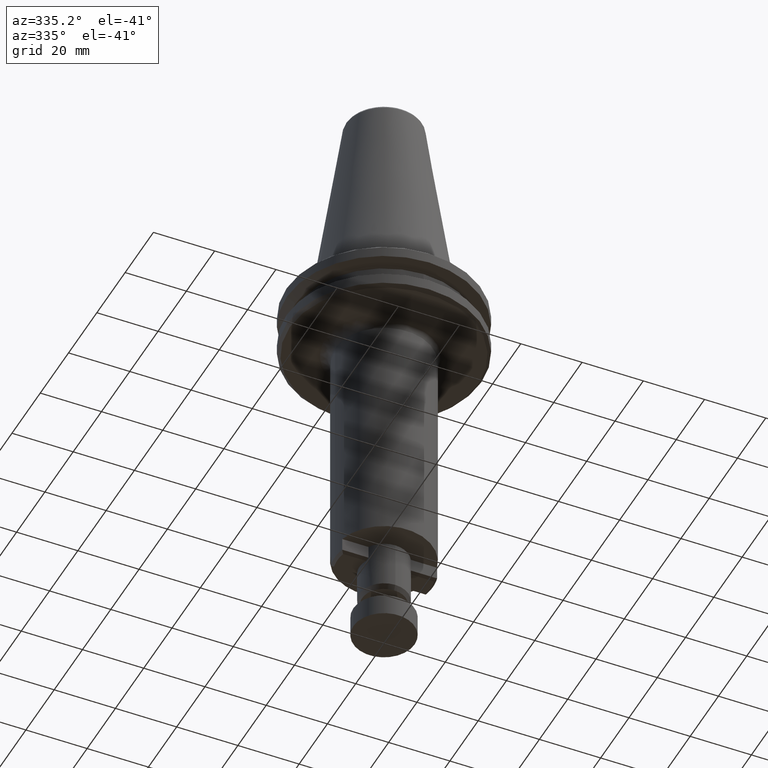
[diagram: clean part render]
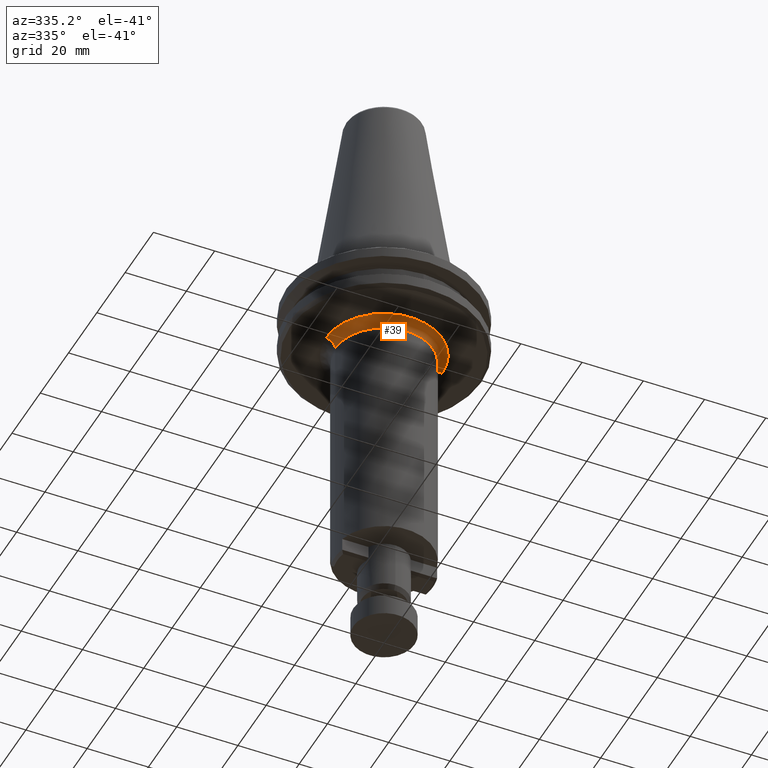
[diagram: same view with one face highlighted and labeled with its STEP entity id]
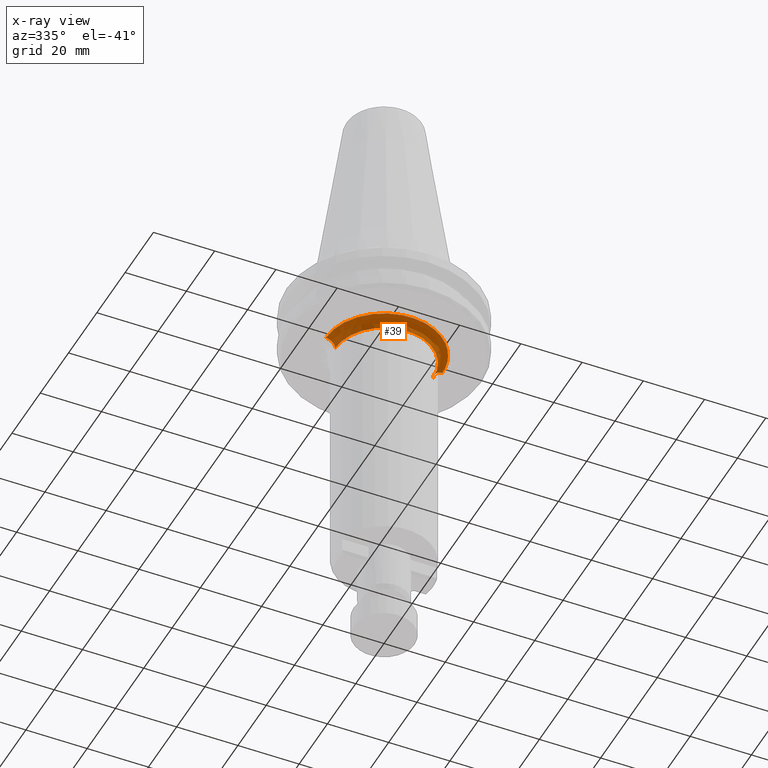
[diagram: x-ray of the same camera — body ghosted, the highlighted face saturated]
A machine part, auxiliary view. The second image highlights one B-rep face of the part: STEP entity #39.
The next image is the same camera in x-ray: the body ghosted, the highlighted face saturated — about 0% of this face is hidden behind the body in this view.
In plain terms, the highlighted face is a freeform B-spline surface patch.
Its self-contained STEP definition (entity closure, byte-faithful):
#36 = CARTESIAN_POINT ( 'NONE',  ( -19.00000000545200900, 0.0000000000000000000, -19.09999999992663800 ) ) ;
#38 = CARTESIAN_POINT ( 'NONE',  ( 17.95705244064510400, -6.218791703970409500, -19.10000000000000100 ) ) ;
#39 = ADVANCED_FACE ( 'NONE', ( #646 ), #1165, .F. ) ;
#62 = CARTESIAN_POINT ( 'NONE',  ( -12.52453243535676600, -14.28763286654409700, -19.10000000000000900 ) ) ;
#69 = CARTESIAN_POINT ( 'NONE',  ( -12.55583894094087700, -14.26012803612243100, -19.10000000000000500 ) ) ;
#76 = CARTESIAN_POINT ( 'NONE',  ( -8.962333903411964900, -16.75342047558147500, -19.10000000000000500 ) ) ;
#79 = CARTESIAN_POINT ( 'NONE',  ( -15.24513918323105000, -11.33957646189557300, -19.10000000000000100 ) ) ;
#81 = CARTESIAN_POINT ( 'NONE',  ( -15.35706673221759100, -11.18796214395362300, -19.10000000000000100 ) ) ;
#84 = AXIS2_PLACEMENT_3D ( 'NONE', #392, #317, #1189 ) ;
#111 = CARTESIAN_POINT ( 'NONE',  ( -15.21249292925832800, -11.38334098104500900, -19.10000000000000500 ) ) ;
#118 = CARTESIAN_POINT ( 'NONE',  ( -14.16203973266070900, -12.69728857693814700, -19.10000000000000100 ) ) ;
#174 = CARTESIAN_POINT ( 'NONE',  ( -16.01498750400000400, 0.0000000000000000000, -22.39950024999999900 ) ) ;
#177 = CARTESIAN_POINT ( 'NONE',  ( 15.11209687522461000, -11.51639939022069600, -19.10000000000000500 ) ) ;
#218 = CARTESIAN_POINT ( 'NONE',  ( -8.981086982203191100, -16.74337238950391800, -19.10000000000000100 ) ) ;
#236 = CARTESIAN_POINT ( 'NONE',  ( -9.219426998697034700, -16.61375730837693300, -19.10000000000000100 ) ) ;
#239 = CARTESIAN_POINT ( 'NONE',  ( -18.83534767184776700, -2.495958203586289900, -19.10000000000000500 ) ) ;
#245 = CARTESIAN_POINT ( 'NONE',  ( -17.13005107734147700, -8.219684884473665000, -19.10000000000000500 ) ) ;
#260 = CARTESIAN_POINT ( 'NONE',  ( -15.51145590361593200, -10.97430836230128800, -19.10000000000000500 ) ) ;
#263 = CARTESIAN_POINT ( 'NONE',  ( -15.81220156055941200, -10.54215301974929300, -19.09999999999999800 ) ) ;
#266 = CIRCLE ( 'NONE', #84, 15.99999999987771900 ) ;
#274 = CARTESIAN_POINT ( 'NONE',  ( -15.99999999990828800, -1.230620203816620500E-009, -22.09999999974090900 ) ) ;
#279 = CARTESIAN_POINT ( 'NONE',  ( -18.29761689764103800, -5.118919848471761300, -19.10000000000000100 ) ) ;
#282 = CARTESIAN_POINT ( 'NONE',  ( -18.35330572239783100, -4.917448810888722700, -19.10000000000000500 ) ) ;
#287 = CARTESIAN_POINT ( 'NONE',  ( -17.18086604673874300, -8.113305769463718100, -19.10000000000000100 ) ) ;
#314 = ORIENTED_EDGE ( 'NONE', *, *, #775, .F. ) ;
#317 = DIRECTION ( 'NONE',  ( 0.0000000000000000000, 1.084202172493490300E-016, -1.000000000000000000 ) ) ;
#357 = CARTESIAN_POINT ( 'NONE',  ( 19.29950024999999800, 0.0000000000000000000, -19.11498750400000500 ) ) ;
#380 = CARTESIAN_POINT ( 'NONE',  ( -17.09339984187957700, -8.295535603817265600, -19.10000000000000500 ) ) ;
#384 = CARTESIAN_POINT ( 'NONE',  ( -16.00000000030355100, 0.0000000000000000000, -20.34264068385204300 ) ) ;
#388 = CARTESIAN_POINT ( 'NONE',  ( -8.264138598252655400, -17.12583885975123400, -19.10000000000000500 ) ) ;
#392 = CARTESIAN_POINT ( 'NONE',  ( 0.0000000000000000000, 0.0000000000000000000, -22.10000000000000900 ) ) ;
#407 = CARTESIAN_POINT ( 'NONE',  ( -9.080622607792978600, -16.68969277510573300, -19.10000000000000100 ) ) ;
#410 = CARTESIAN_POINT ( 'NONE',  ( -16.01498750400000800, -32.02997500800001500, -22.39950025000000300 ) ) ;
#422 = CARTESIAN_POINT ( 'NONE',  ( -5.324572743321044600, -18.24051958477763000, -19.09999999999999800 ) ) ;
#442 = CARTESIAN_POINT ( 'NONE',  ( -19.00000000545200900, 0.0000000000000000000, -19.09999999992663800 ) ) ;
#445 = CARTESIAN_POINT ( 'NONE',  ( -18.83383924483710500, -2.507328258564880800, -19.10000000000000100 ) ) ;
#447 = CARTESIAN_POINT ( 'NONE',  ( -18.76847155256034600, -2.995584215585153300, -19.09999999999999800 ) ) ;
#451 = CARTESIAN_POINT ( 'NONE',  ( -18.64694911184324900, -3.700413970303941800, -19.10000000000000100 ) ) ;
#509 = CARTESIAN_POINT ( 'NONE',  ( 15.02349800377708000, -11.63214582304317100, -19.10000000000000500 ) ) ;
#516 = CARTESIAN_POINT ( 'NONE',  ( 19.00000000545200500, 0.0000000000000000000, -19.09999999992663800 ) ) ;
#533 = EDGE_CURVE ( 'NONE', #765, #2144, #266, .T. ) ;
#576 = CARTESIAN_POINT ( 'NONE',  ( -15.99999999990828800, -1.230620203816620500E-009, -22.09999999974090900 ) ) ;
#591 = CARTESIAN_POINT ( 'NONE',  ( -16.38156213103350800, -9.658451217656047300, -19.09999999999999800 ) ) ;
#605 = CARTESIAN_POINT ( 'NONE',  ( -18.26904945742166200, -5.219508784851025300, -19.09999999999999400 ) ) ;
#612 = CARTESIAN_POINT ( 'NONE',  ( 17.24264069015787400, 0.0000000000000000000, -19.09999999689970500 ) ) ;
#632 = CARTESIAN_POINT ( 'NONE',  ( 19.00000000545200500, 0.0000000000000000000, -19.09999999992663800 ) ) ;
#645 = CARTESIAN_POINT ( 'NONE',  ( -19.29950024999999800, 0.0000000000000000000, -19.11498750400000500 ) ) ;
#646 = FACE_OUTER_BOUND ( 'NONE', #1775, .T. ) ;
#765 = VERTEX_POINT ( 'NONE', #2111 ) ;
#775 = EDGE_CURVE ( 'NONE', #2237, #1362, #1873, .T. ) ;
#820 = CARTESIAN_POINT ( 'NONE',  ( -1.582605885478423500, -18.99990892630771800, -19.10000000000000500 ) ) ;
#830 = CARTESIAN_POINT ( 'NONE',  ( 0.7913029427397346700, -19.00004553482212400, -19.10000000000000100 ) ) ;
#835 = CARTESIAN_POINT ( 'NONE',  ( -4.724857334212559900, -18.40320797551033400, -19.10000000000000900 ) ) ;
#846 = CARTESIAN_POINT ( 'NONE',  ( 9.579537336600218100, -16.42429215525838900, -19.10000000000000900 ) ) ;
#854 = CARTESIAN_POINT ( 'NONE',  ( 18.82787069369280500, -2.551753388856962300, -19.10000000000000900 ) ) ;
#859 = CARTESIAN_POINT ( 'NONE',  ( 14.47729407120939400, -12.31291229760819700, -19.10000000000000100 ) ) ;
#860 = CARTESIAN_POINT ( 'NONE',  ( -12.51018369949012900, -14.30020171110121700, -19.10000000000000500 ) ) ;
#881 = CARTESIAN_POINT ( 'NONE',  ( 15.56170754946818000, -10.91778301388513100, -19.10000000000000900 ) ) ;
#906 = CARTESIAN_POINT ( 'NONE',  ( 11.51801248307951300, -15.11861122753505700, -19.10000000000000100 ) ) ;
#911 = CARTESIAN_POINT ( 'NONE',  ( 10.50230476336805200, -15.86277718720209500, -19.10000000000000100 ) ) ;
#929 = CARTESIAN_POINT ( 'NONE',  ( -18.45889914918349500, -4.513334076424572800, -19.10000000000000900 ) ) ;
#937 = CARTESIAN_POINT ( 'NONE',  ( -17.10808538279960100, -8.265204800513211900, -19.10000000000000100 ) ) ;
#948 = CARTESIAN_POINT ( 'NONE',  ( 4.580941071897652400, -18.43955888703034800, -19.10000000000000900 ) ) ;
#952 = CARTESIAN_POINT ( 'NONE',  ( 16.06781967307481200, -10.17185061201232300, -19.09999999999999800 ) ) ;
#958 = CARTESIAN_POINT ( 'NONE',  ( -17.28074271406496000, -7.899883629106558800, -19.10000000000000100 ) ) ;
#962 = CARTESIAN_POINT ( 'NONE',  ( -18.24471286189909900, -5.303838732464154900, -19.10000000000000100 ) ) ;
#974 = ORIENTED_EDGE ( 'NONE', *, *, #1645, .T. ) ;
#977 = CARTESIAN_POINT ( 'NONE',  ( 18.99999999858327700, -0.8448279161415245300, -19.10000000000000900 ) ) ;
#979 = CARTESIAN_POINT ( 'NONE',  ( -4.862689239477622200, -18.36727125998733000, -19.10000000000000900 ) ) ;
#982 = CARTESIAN_POINT ( 'NONE',  ( -4.769904803613674600, -18.39157994833023900, -19.10000000000001200 ) ) ;
#1007 = EDGE_CURVE ( 'NONE', #2237, #2144, #1515, .T. ) ;
#1010 = CARTESIAN_POINT ( 'NONE',  ( 8.856383771649428000, -16.80966900684414600, -19.10000000000000500 ) ) ;
#1027 = CARTESIAN_POINT ( 'NONE',  ( 18.94395279865391000, -1.685535880683595200, -19.10000000000000500 ) ) ;
#1054 = CARTESIAN_POINT ( 'NONE',  ( 15.81033873199999800, -31.62067746400000000, -20.35983870400000500 ) ) ;
#1059 = CARTESIAN_POINT ( 'NONE',  ( -9.495110539605381200, -16.45911929290287600, -19.10000000000000100 ) ) ;
#1073 = CARTESIAN_POINT ( 'NONE',  ( -12.92722799897615200, -13.92612539565154300, -19.10000000000000500 ) ) ;
#1083 = CARTESIAN_POINT ( 'NONE',  ( -15.81033873199999800, 0.0000000000000000000, -20.35983870400000500 ) ) ;
#1085 = CARTESIAN_POINT ( 'NONE',  ( 12.47746222979179400, -14.32875866463033500, -19.10000000000000500 ) ) ;
#1109 = CARTESIAN_POINT ( 'NONE',  ( -19.00000000545200900, 0.0000000000000000000, -19.09999999992663800 ) ) ;
#1114 = CARTESIAN_POINT ( 'NONE',  ( -5.001668602098401800, -18.33030420487665800, -19.09999999999999100 ) ) ;
#1117 = CARTESIAN_POINT ( 'NONE',  ( -16.81450420273213100, -8.867750615308786200, -19.09999999999999800 ) ) ;
#1128 = CARTESIAN_POINT ( 'NONE',  ( -9.020928735880531200, -16.72194007348773700, -19.10000000000000100 ) ) ;
#1134 = CARTESIAN_POINT ( 'NONE',  ( -17.83091111690815100, -6.600761297519528400, -19.10000000000001200 ) ) ;
#1135 = CARTESIAN_POINT ( 'NONE',  ( -18.08918837440250700, -5.837160548676654200, -19.09999999999999800 ) ) ;
#1142 = CARTESIAN_POINT ( 'NONE',  ( -17.25983870400000700, -34.51967740899997500, -18.91033873200000300 ) ) ;
#1165 =( BOUNDED_SURFACE ( )  B_SPLINE_SURFACE ( 3, 3, ( 
 ( #357, #1864, #1705, #645 ),
 ( #1907, #2227, #1142, #1224 ),
 ( #1968, #1054, #1921, #1083 ),
 ( #1216, #1627, #410, #174 ) ),
 .UNSPECIFIED., .F., .F., .T. ) 
 B_SPLINE_SURFACE_WITH_KNOTS ( ( 4, 4 ),
 ( 4, 4 ),
 ( 0.0000000000000000000, 1.000000000000000000 ),
 ( 0.0000000000000000000, 1.000000000000000000 ),
 .UNSPECIFIED. ) 
 GEOMETRIC_REPRESENTATION_ITEM ( )  RATIONAL_B_SPLINE_SURFACE ( (
 ( 1.000000000000000000, 0.3333333333333330400, 0.3333333333333330400, 1.000000000000000000),
 ( 0.7553208711179720800, 0.2517736237059909900, 0.2517736237059909900, 0.7553208711179720800),
 ( 0.7553208711179720800, 0.2517736237059909900, 0.2517736237059909900, 0.7553208711179720800),
 ( 1.000000000000000000, 0.3333333333333330400, 0.3333333333333330400, 1.000000000000000000) ) ) 
 REPRESENTATION_ITEM ( '' )  SURFACE ( )  );
#1166 = CARTESIAN_POINT ( 'NONE',  ( 12.99518121870957200, -13.87698297224406100, -19.10000000000000500 ) ) ;
#1172 = CARTESIAN_POINT ( 'NONE',  ( 18.20666516449709600, -5.433154239186166900, -19.10000000000000100 ) ) ;
#1180 = CARTESIAN_POINT ( 'NONE',  ( -18.24835148885313900, -5.291298694145531600, -19.10000000000000100 ) ) ;
#1187 = CARTESIAN_POINT ( 'NONE',  ( -18.25665133421885100, -5.262586918496648300, -19.10000000000000100 ) ) ;
#1189 = DIRECTION ( 'NONE',  ( 0.0000000000000000000, 1.000000000000000000, 0.0000000000000000000 ) ) ;
#1190 = CARTESIAN_POINT ( 'NONE',  ( -17.47348296284392400, -7.470383707043068500, -19.10000000000000500 ) ) ;
#1216 = CARTESIAN_POINT ( 'NONE',  ( 16.01498750400000400, 0.0000000000000000000, -22.39950024999999900 ) ) ;
#1219 = CARTESIAN_POINT ( 'NONE',  ( -13.35006861207772600, -13.52684771095808200, -19.10000000000000500 ) ) ;
#1221 = CARTESIAN_POINT ( 'NONE',  ( -12.71159392922284300, -14.12188876741913300, -19.09999999999999800 ) ) ;
#1224 = CARTESIAN_POINT ( 'NONE',  ( -17.25983870400000300, 0.0000000000000000000, -18.91033873200000700 ) ) ;
#1247 = CARTESIAN_POINT ( 'NONE',  ( 12.42483367054750700, -14.37441932913137400, -19.10000000000000900 ) ) ;
#1250 = CARTESIAN_POINT ( 'NONE',  ( 19.00000000545200500, 0.0000000000000000000, -19.09999999992663800 ) ) ;
#1276 = CARTESIAN_POINT ( 'NONE',  ( 17.02045797280703400, -8.444308981165320900, -19.10000000000000500 ) ) ;
#1277 = CARTESIAN_POINT ( 'NONE',  ( 15.14984418690799500, -11.46658389672990300, -19.10000000000000900 ) ) ;
#1295 = CARTESIAN_POINT ( 'NONE',  ( 4.630440515401453200, -18.42718687292486700, -19.10000000000000100 ) ) ;
#1316 = CARTESIAN_POINT ( 'NONE',  ( -5.964856872862749300, -18.04683771188295400, -19.10000000000000100 ) ) ;
#1358 = CARTESIAN_POINT ( 'NONE',  ( -17.24264069024678000, 0.0000000000000000000, -19.09999999689970500 ) ) ;
#1361 = CARTESIAN_POINT ( 'NONE',  ( 8.921227692839197600, -16.77534381009656500, -19.10000000000000500 ) ) ;
#1362 = VERTEX_POINT ( 'NONE', #632 ) ;
#1365 = CARTESIAN_POINT ( 'NONE',  ( -3.143026832159808500, -18.80503704820469900, -19.10000000000000500 ) ) ;
#1368 = CARTESIAN_POINT ( 'NONE',  ( -12.60272345354555200, -14.21880158565816100, -19.10000000000000100 ) ) ;
#1375 = CARTESIAN_POINT ( 'NONE',  ( -17.08690629291481900, -8.308908073560624900, -19.10000000000000100 ) ) ;
#1385 = CARTESIAN_POINT ( 'NONE',  ( 16.59449771326922700, -9.262034026308995700, -19.09999999999999400 ) ) ;
#1390 = CARTESIAN_POINT ( 'NONE',  ( 12.01065277338917200, -14.72426195680119500, -19.09999999999999800 ) ) ;
#1424 = CARTESIAN_POINT ( 'NONE',  ( -7.223328520331968200, -17.60302343530720400, -19.10000000000000100 ) ) ;
#1437 = CARTESIAN_POINT ( 'NONE',  ( -11.94809418835500000, -14.79080548518274800, -19.10000000000000500 ) ) ;
#1503 = CARTESIAN_POINT ( 'NONE',  ( -18.84392716162608000, -2.430535178837561100, -19.10000000000000100 ) ) ;
#1506 = CARTESIAN_POINT ( 'NONE',  ( -18.83879588783316400, -2.469789999360993100, -19.10000000000000100 ) ) ;
#1508 = CARTESIAN_POINT ( 'NONE',  ( -18.87783461910236600, -2.155628240084887200, -19.09999999999999400 ) ) ;
#1509 = CARTESIAN_POINT ( 'NONE',  ( -18.91768067154012200, -1.788757134844835500, -19.10000000000000900 ) ) ;
#1511 = CARTESIAN_POINT ( 'NONE',  ( -18.97898229345321800, -1.053888569268229600, -19.10000000000000500 ) ) ;
#1513 = CARTESIAN_POINT ( 'NONE',  ( -18.85561278251322300, -2.338922998317856100, -19.10000000000000500 ) ) ;
#1515 =( BOUNDED_CURVE ( )  B_SPLINE_CURVE ( 3, ( #1109, #1358, #384, #274 ),
 .UNSPECIFIED., .F., .T. ) 
 B_SPLINE_CURVE_WITH_KNOTS ( ( 4, 4 ),
 ( 0.06314145558992548300, 0.9368585432134299800 ),
 .UNSPECIFIED. ) 
 CURVE ( )  GEOMETRIC_REPRESENTATION_ITEM ( )  RATIONAL_B_SPLINE_CURVE ( ( 0.9565783030703316500, 0.7697947703503473800, 0.7697947700945281200, 0.9565783023028744400 ) ) 
 REPRESENTATION_ITEM ( '' )  );
#1516 = CARTESIAN_POINT ( 'NONE',  ( 7.740764251717635600, -17.35939238194151100, -19.09999999999999800 ) ) ;
#1519 = CARTESIAN_POINT ( 'NONE',  ( 4.003918238359123200, -18.57527524692739000, -19.10000000000000100 ) ) ;
#1535 = CARTESIAN_POINT ( 'NONE',  ( 4.484889834231926100, -18.46316197970902800, -19.10000000000000100 ) ) ;
#1553 = CARTESIAN_POINT ( 'NONE',  ( 4.340743744745185300, -18.49799543845204000, -19.09999999999999800 ) ) ;
#1565 = CARTESIAN_POINT ( 'NONE',  ( 1.969395534366131800, -18.92700276387898500, -19.10000000000000100 ) ) ;
#1598 = CARTESIAN_POINT ( 'NONE',  ( 15.18869663791194400, -11.41506927998092800, -19.10000000000000100 ) ) ;
#1615 = CARTESIAN_POINT ( 'NONE',  ( 17.06209609930837700, -8.359734360222555300, -19.10000000000000500 ) ) ;
#1627 = CARTESIAN_POINT ( 'NONE',  ( 16.01498750400000800, -32.02997500800001500, -22.39950025000000300 ) ) ;
#1628 = CARTESIAN_POINT ( 'NONE',  ( -14.80022622638297500, -11.93308857983589500, -19.10000000000000100 ) ) ;
#1645 = EDGE_CURVE ( 'NONE', #765, #1362, #2124, .T. ) ;
#1647 = CARTESIAN_POINT ( 'NONE',  ( 13.71006028409903100, -13.18403527070881200, -19.10000000000000100 ) ) ;
#1654 = CARTESIAN_POINT ( 'NONE',  ( 6.511466463609399300, -17.87858652471249600, -19.09999999999999800 ) ) ;
#1660 = CARTESIAN_POINT ( 'NONE',  ( 12.45902613613505800, -14.34479361217476500, -19.10000000000000900 ) ) ;
#1665 = CARTESIAN_POINT ( 'NONE',  ( 17.31470804796127900, -7.841697549157395000, -19.10000000000000100 ) ) ;
#1685 = CARTESIAN_POINT ( 'NONE',  ( 8.344581057058116300, -17.07148567630286000, -19.10000000000000500 ) ) ;
#1690 = CARTESIAN_POINT ( 'NONE',  ( 12.37347705444498800, -14.41875850148190700, -19.10000000000000100 ) ) ;
#1705 = CARTESIAN_POINT ( 'NONE',  ( -19.29950025000000100, -38.59900050000000200, -19.11498750400000500 ) ) ;
#1718 = CARTESIAN_POINT ( 'NONE',  ( -18.99999999858609500, -0.4220703328942668200, -19.10000000000000500 ) ) ;
#1737 = CARTESIAN_POINT ( 'NONE',  ( -15.22260545125431400, -11.36980987241451900, -19.10000000000000500 ) ) ;
#1750 = ORIENTED_EDGE ( 'NONE', *, *, #1007, .T. ) ;
#1763 = CARTESIAN_POINT ( 'NONE',  ( 5.420644055355637600, -18.22654847250532800, -19.10000000000000900 ) ) ;
#1775 = EDGE_LOOP ( 'NONE', ( #314, #1750, #2008, #974 ) ) ;
#1784 = CARTESIAN_POINT ( 'NONE',  ( -15.27886806078676000, -11.29418306237387500, -19.10000000000000500 ) ) ;
#1805 = CARTESIAN_POINT ( 'NONE',  ( 15.17495936509187400, -11.43332692786402800, -19.10000000000000100 ) ) ;
#1829 = CARTESIAN_POINT ( 'NONE',  ( 3.328328701918906100, -18.71384181617802500, -19.10000000000000100 ) ) ;
#1849 = CARTESIAN_POINT ( 'NONE',  ( 17.04546932464712600, -8.393581870258966400, -19.10000000000000500 ) ) ;
#1855 = CARTESIAN_POINT ( 'NONE',  ( 16.96159982290918600, -8.562363160908878600, -19.09999999999999800 ) ) ;
#1862 = CARTESIAN_POINT ( 'NONE',  ( 16.84189020736309000, -8.797235204244417500, -19.10000000000000100 ) ) ;
#1864 = CARTESIAN_POINT ( 'NONE',  ( 19.29950025000000100, -38.59900050000000200, -19.11498750400000500 ) ) ;
#1865 = CARTESIAN_POINT ( 'NONE',  ( 17.07127492275139600, -8.340972231877882900, -19.10000000000000100 ) ) ;
#1867 = CARTESIAN_POINT ( 'NONE',  ( 8.643781437549959500, -16.92045491492023100, -19.10000000000000100 ) ) ;
#1873 = B_SPLINE_CURVE_WITH_KNOTS ( 'NONE', 3,
 ( #442, #1718, #1511, #1509, #1508, #1513, #1503, #1506, #239, #445, #447, #451, #929, #282, #279, #605, #1187, #1180, #962, #1135, #1134, #1190, #958, #287, #245, #937, #380, #1375, #1117, #591, #263, #260, #81, #1784, #79, #1737, #111, #1628, #118, #1219, #1073, #1221, #1368, #69, #62, #860, #1437, #1888, #1980, #1059, #236, #407, #1128, #218, #76, #388, #1424, #1316, #422, #1114, #979, #982, #835, #1365, #820, #830, #1565, #1829, #1519, #1553, #1535, #948, #1295, #1763, #1654, #1516, #1685, #1867, #1876, #1010, #2065, #1361, #846, #911, #906, #1390, #1908, #1690, #1247, #1660, #1085, #1166, #1647, #859, #2179, #509, #177, #1277, #1805, #1598, #881, #952, #1385, #1862, #1855, #1276, #1849, #1615, #1865, #1665, #2107, #38, #2287, #2280, #1172, #2094, #2068, #2023, #2228, #2004, #2267, #2209, #2187, #2167, #2178, #854, #2174, #1027, #977, #516 ),
 .UNSPECIFIED., .F., .F.,
 ( 4, 1, 1, 1, 1, 1, 2, 2, 1, 1, 1, 1, 1, 2, 2, 1, 1, 1, 1, 1, 2, 2, 1, 1, 1, 1, 1, 2, 2, 1, 1, 1, 1, 1, 2, 2, 1, 1, 1, 1, 1, 2, 2, 1, 1, 1, 1, 2, 2, 2, 1, 1, 1, 1, 2, 2, 1, 1, 1, 1, 1, 2, 2, 1, 1, 1, 1, 1, 2, 2, 1, 1, 1, 1, 1, 2, 2, 1, 1, 1, 1, 1, 2, 2, 1, 1, 1, 1, 1, 2, 2, 1, 1, 1, 1, 1, 2, 2, 4 ),
 ( 0.0000000000000000000, 0.03124999999999814000, 0.04687499999999720400, 0.05468749999999673200, 0.05859374999999648200, 0.06054687499999632200, 0.06152343749999625300, 0.06249999999999619100, 0.09374999999999367200, 0.1093749999999923900, 0.1171874999999917600, 0.1210937499999914700, 0.1230468749999913400, 0.1240234374999912800, 0.1249999999999912300, 0.1562499999999892000, 0.1718749999999882000, 0.1796874999999877000, 0.1835937499999874000, 0.1855468749999873200, 0.1865234374999872600, 0.1874999999999872000, 0.2187499999999862300, 0.2343749999999858400, 0.2421874999999856200, 0.2460937499999855100, 0.2480468749999854800, 0.2490234374999854600, 0.2499999999999854600, 0.2812499999999846200, 0.2968749999999842300, 0.3046874999999840100, 0.3085937499999839000, 0.3105468749999838500, 0.3115234374999838500, 0.3124999999999838500, 0.3437499999999830100, 0.3593749999999826800, 0.3671874999999824600, 0.3710937499999824000, 0.3730468749999824000, 0.3740234374999824000, 0.3749999999999824000, 0.4062499999999824000, 0.4218749999999824600, 0.4296874999999824600, 0.4335937499999825100, 0.4355468749999825700, 0.4374999999999826300, 0.4999999999999849000, 0.5312499999999860100, 0.5468749999999866800, 0.5546874999999870100, 0.5585937499999872300, 0.5605468749999873400, 0.5624999999999873400, 0.5937499999999889000, 0.6093749999999895600, 0.6171874999999900100, 0.6210937499999901200, 0.6230468749999901200, 0.6240234374999902300, 0.6249999999999902300, 0.6562499999999917800, 0.6718749999999926700, 0.6796874999999931200, 0.6835937499999933400, 0.6855468749999934500, 0.6865234374999934500, 0.6874999999999934500, 0.7187499999999960000, 0.7343749999999972200, 0.7421874999999978900, 0.7460937499999982200, 0.7480468749999983300, 0.7490234374999984500, 0.7499999999999984500, 0.7812499999999986700, 0.7968749999999988900, 0.8046874999999990000, 0.8085937499999991100, 0.8105468749999992200, 0.8115234374999991100, 0.8124999999999990000, 0.8437499999999993300, 0.8593749999999994400, 0.8671874999999994400, 0.8710937499999995600, 0.8730468749999996700, 0.8740234374999996700, 0.8749999999999995600, 0.9062499999999997800, 0.9218750000000000000, 0.9296875000000001100, 0.9335937500000002200, 0.9355468750000002200, 0.9365234375000002200, 0.9375000000000002200, 1.000000000000000000 ),
 .UNSPECIFIED. ) ;
#1876 = CARTESIAN_POINT ( 'NONE',  ( 8.792704622251283900, -16.84317018208808000, -19.09999999999999800 ) ) ;
#1888 = CARTESIAN_POINT ( 'NONE',  ( -11.09530503986049900, -15.45381290359786600, -19.10000000000000100 ) ) ;
#1907 = CARTESIAN_POINT ( 'NONE',  ( 17.25983870400000300, 0.0000000000000000000, -18.91033873200000700 ) ) ;
#1908 = CARTESIAN_POINT ( 'NONE',  ( 12.25316952615746200, -14.52152074870918200, -19.10000000000000500 ) ) ;
#1921 = CARTESIAN_POINT ( 'NONE',  ( -15.81033873199999800, -31.62067746400000000, -20.35983870400000500 ) ) ;
#1957 = CARTESIAN_POINT ( 'NONE',  ( 15.99999999993886000, 0.0000000000000000000, -22.09999999982727900 ) ) ;
#1968 = CARTESIAN_POINT ( 'NONE',  ( 15.81033873199999800, 0.0000000000000000000, -20.35983870400000500 ) ) ;
#1980 = CARTESIAN_POINT ( 'NONE',  ( -10.03877665782277800, -16.13877493388897100, -19.09999999999999800 ) ) ;
#2004 = CARTESIAN_POINT ( 'NONE',  ( 18.54805717567288400, -4.167903876321014800, -19.10000000000000100 ) ) ;
#2008 = ORIENTED_EDGE ( 'NONE', *, *, #533, .F. ) ;
#2023 = CARTESIAN_POINT ( 'NONE',  ( 18.23582009013889400, -5.334327885515993900, -19.09999999999999800 ) ) ;
#2065 = CARTESIAN_POINT ( 'NONE',  ( 8.898804299555594700, -16.78725063515099300, -19.10000000000000100 ) ) ;
#2068 = CARTESIAN_POINT ( 'NONE',  ( 18.23053801370047100, -5.352354433676821600, -19.10000000000000500 ) ) ;
#2094 = CARTESIAN_POINT ( 'NONE',  ( 18.22101377537347800, -5.384684216409382000, -19.10000000000000900 ) ) ;
#2107 = CARTESIAN_POINT ( 'NONE',  ( 17.63691886015621800, -7.102858351945073400, -19.09999999999999400 ) ) ;
#2111 = CARTESIAN_POINT ( 'NONE',  ( 15.99999999993886100, 0.0000000000000000000, -22.09999999982727900 ) ) ;
#2124 =( BOUNDED_CURVE ( )  B_SPLINE_CURVE ( 3, ( #1957, #2230, #612, #1250 ),
 .UNSPECIFIED., .F., .F. ) 
 B_SPLINE_CURVE_WITH_KNOTS ( ( 4, 4 ),
 ( 0.06314145675099855400, 0.9368585444100754300 ),
 .UNSPECIFIED. ) 
 CURVE ( )  GEOMETRIC_REPRESENTATION_ITEM ( )  RATIONAL_B_SPLINE_CURVE ( ( 0.9565783023256878600, 0.7697947700945279000, 0.7697947703427426800, 0.9565783030703323100 ) ) 
 REPRESENTATION_ITEM ( '' )  );
#2144 = VERTEX_POINT ( 'NONE', #576 ) ;
#2167 = CARTESIAN_POINT ( 'NONE',  ( 18.81772138587808000, -2.625787032439032200, -19.10000000000000500 ) ) ;
#2174 = CARTESIAN_POINT ( 'NONE',  ( 18.83010693078691100, -2.535195581328476300, -19.10000000000000500 ) ) ;
#2178 = CARTESIAN_POINT ( 'NONE',  ( 18.82383154517877700, -2.581371428517758000, -19.10000000000000500 ) ) ;
#2179 = CARTESIAN_POINT ( 'NONE',  ( 14.84421301747023500, -11.86167981406385200, -19.09999999999999800 ) ) ;
#2187 = CARTESIAN_POINT ( 'NONE',  ( 18.80310429180212900, -2.729343252599232700, -19.09999999999999800 ) ) ;
#2209 = CARTESIAN_POINT ( 'NONE',  ( 18.77242988081981100, -2.936134936961902300, -19.09999999999999800 ) ) ;
#2227 = CARTESIAN_POINT ( 'NONE',  ( 17.25983870400000700, -34.51967740899997500, -18.91033873200000300 ) ) ;
#2228 = CARTESIAN_POINT ( 'NONE',  ( 18.37375707072837400, -4.861507651021241800, -19.10000000000000900 ) ) ;
#2230 = CARTESIAN_POINT ( 'NONE',  ( 16.00000000020236600, 0.0000000000000000000, -20.34264068395322400 ) ) ;
#2237 = VERTEX_POINT ( 'NONE', #36 ) ;
#2267 = CARTESIAN_POINT ( 'NONE',  ( 18.70532016753331600, -3.348435281856252800, -19.09999999999999800 ) ) ;
#2280 = CARTESIAN_POINT ( 'NONE',  ( 18.17274929875113900, -5.546078399744284400, -19.09999999999999800 ) ) ;
#2287 = CARTESIAN_POINT ( 'NONE',  ( 18.10317447245490300, -5.771236483843001300, -19.09999999999999800 ) ) ;